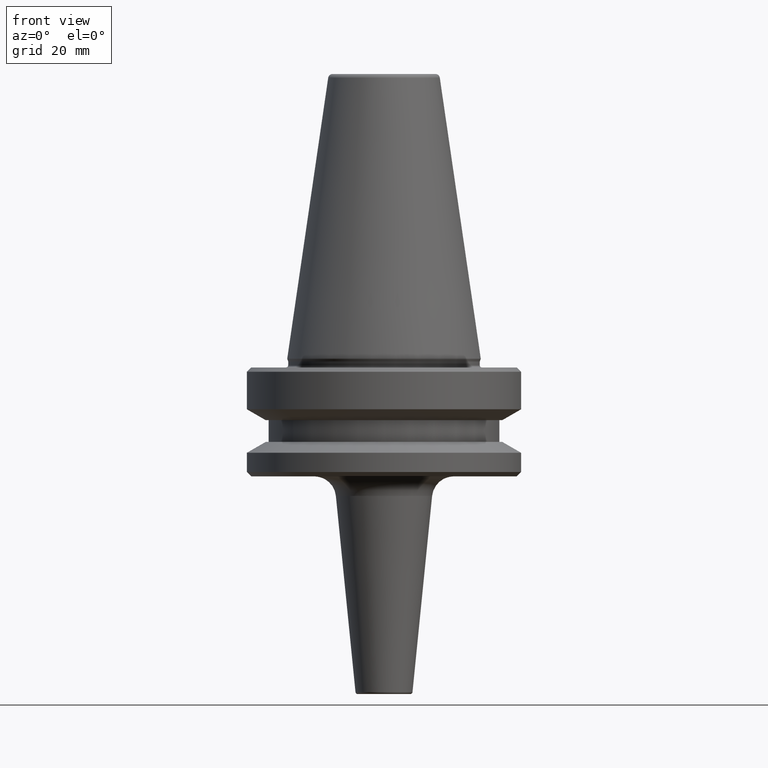
[diagram: clean part render]
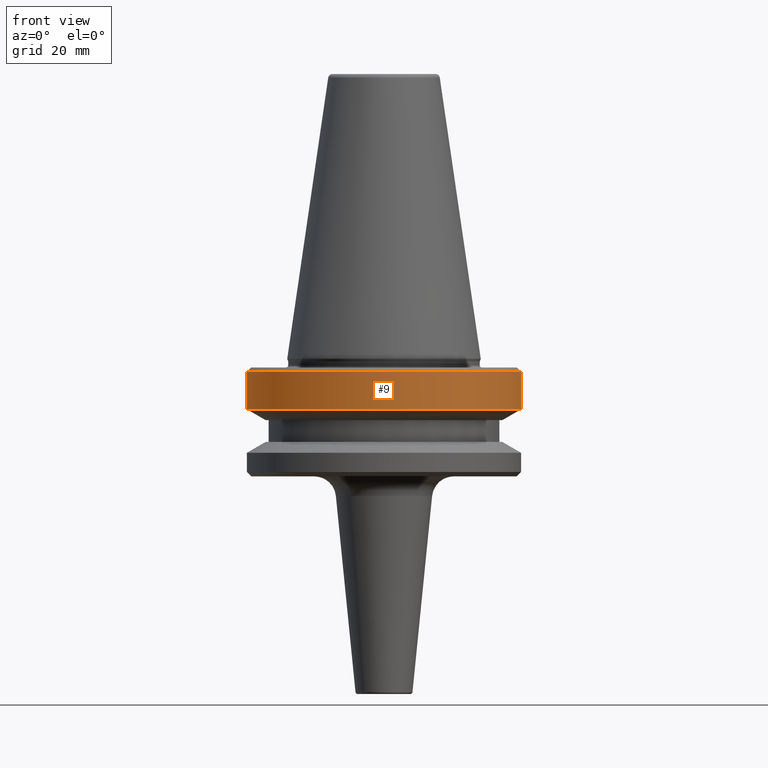
[diagram: same view with one face highlighted and labeled with its STEP entity id]
A machine part, front view. The second image highlights one B-rep face of the part: STEP entity #9.
In plain terms, the highlighted cylindrical surface (partial cylindrical patch) has radius 31.5 mm, axis along (-0, -0, 1).
Its self-contained STEP definition (entity closure, byte-faithful):
#9 = ADVANCED_FACE ( 'NONE', ( #728 ), #165, .T. ) ;
#12 = DIRECTION ( 'NONE',  ( -0.0000000000000000000, -0.0000000000000000000, 1.000000000000000000 ) ) ;
#17 = EDGE_CURVE ( 'NONE', #418, #872, #587, .T. ) ;
#31 = CIRCLE ( 'NONE', #241, 31.50000000000008500 ) ;
#41 = CARTESIAN_POINT ( 'NONE',  ( 0.0000000000000000000, 0.0000000000000000000, -76.99985799368391800 ) ) ;
#62 = DIRECTION ( 'NONE',  ( -0.0000000000000000000, -0.0000000000000000000, 1.000000000000000000 ) ) ;
#132 = DIRECTION ( 'NONE',  ( -0.0000000000000000000, -0.0000000000000000000, 1.000000000000000000 ) ) ;
#165 = CYLINDRICAL_SURFACE ( 'NONE', #969, 31.50000000000008500 ) ;
#169 = CIRCLE ( 'NONE', #289, 31.50000000000008500 ) ;
#202 = ORIENTED_EDGE ( 'NONE', *, *, #631, .F. ) ;
#241 = AXIS2_PLACEMENT_3D ( 'NONE', #699, #62, #543 ) ;
#275 = ORIENTED_EDGE ( 'NONE', *, *, #306, .F. ) ;
#289 = AXIS2_PLACEMENT_3D ( 'NONE', #41, #132, #618 ) ;
#306 = EDGE_CURVE ( 'NONE', #578, #872, #31, .T. ) ;
#353 = CARTESIAN_POINT ( 'NONE',  ( -31.50000000000008500, 3.857637417314172900E-015, -68.40000000000046000 ) ) ;
#374 = VECTOR ( 'NONE', #676, 1000.000000000000000 ) ;
#396 = VERTEX_POINT ( 'NONE', #465 ) ;
#414 = DIRECTION ( 'NONE',  ( 1.000000000000000000, 0.0000000000000000000, 0.0000000000000000000 ) ) ;
#418 = VERTEX_POINT ( 'NONE', #1046 ) ;
#464 = EDGE_CURVE ( 'NONE', #396, #418, #169, .T. ) ;
#465 = CARTESIAN_POINT ( 'NONE',  ( -31.50000000000008500, 3.857637417314172900E-015, -76.99985799368391800 ) ) ;
#498 = EDGE_LOOP ( 'NONE', ( #202, #981, #636, #275 ) ) ;
#511 = VECTOR ( 'NONE', #12, 1000.000000000000000 ) ;
#543 = DIRECTION ( 'NONE',  ( 1.000000000000000000, 0.0000000000000000000, 0.0000000000000000000 ) ) ;
#560 = CARTESIAN_POINT ( 'NONE',  ( -31.50000000000008500, 3.857637417314172900E-015, 6.357346922996331500 ) ) ;
#578 = VERTEX_POINT ( 'NONE', #353 ) ;
#587 = LINE ( 'NONE', #605, #374 ) ;
#605 = CARTESIAN_POINT ( 'NONE',  ( 31.50000000000008500, 0.0000000000000000000, 6.357346922996331500 ) ) ;
#618 = DIRECTION ( 'NONE',  ( 1.000000000000000000, 0.0000000000000000000, 0.0000000000000000000 ) ) ;
#631 = EDGE_CURVE ( 'NONE', #396, #578, #719, .T. ) ;
#636 = ORIENTED_EDGE ( 'NONE', *, *, #17, .T. ) ;
#654 = DIRECTION ( 'NONE',  ( -0.0000000000000000000, -0.0000000000000000000, 1.000000000000000000 ) ) ;
#676 = DIRECTION ( 'NONE',  ( -0.0000000000000000000, -0.0000000000000000000, 1.000000000000000000 ) ) ;
#699 = CARTESIAN_POINT ( 'NONE',  ( 0.0000000000000000000, 0.0000000000000000000, -68.40000000000046000 ) ) ;
#719 = LINE ( 'NONE', #560, #511 ) ;
#728 = FACE_OUTER_BOUND ( 'NONE', #498, .T. ) ;
#872 = VERTEX_POINT ( 'NONE', #1030 ) ;
#897 = CARTESIAN_POINT ( 'NONE',  ( 0.0000000000000000000, 0.0000000000000000000, 6.357346922996331500 ) ) ;
#969 = AXIS2_PLACEMENT_3D ( 'NONE', #897, #654, #414 ) ;
#981 = ORIENTED_EDGE ( 'NONE', *, *, #464, .T. ) ;
#1030 = CARTESIAN_POINT ( 'NONE',  ( 31.50000000000008500, 0.0000000000000000000, -68.40000000000046000 ) ) ;
#1046 = CARTESIAN_POINT ( 'NONE',  ( 31.50000000000008500, 0.0000000000000000000, -76.99985799368391800 ) ) ;